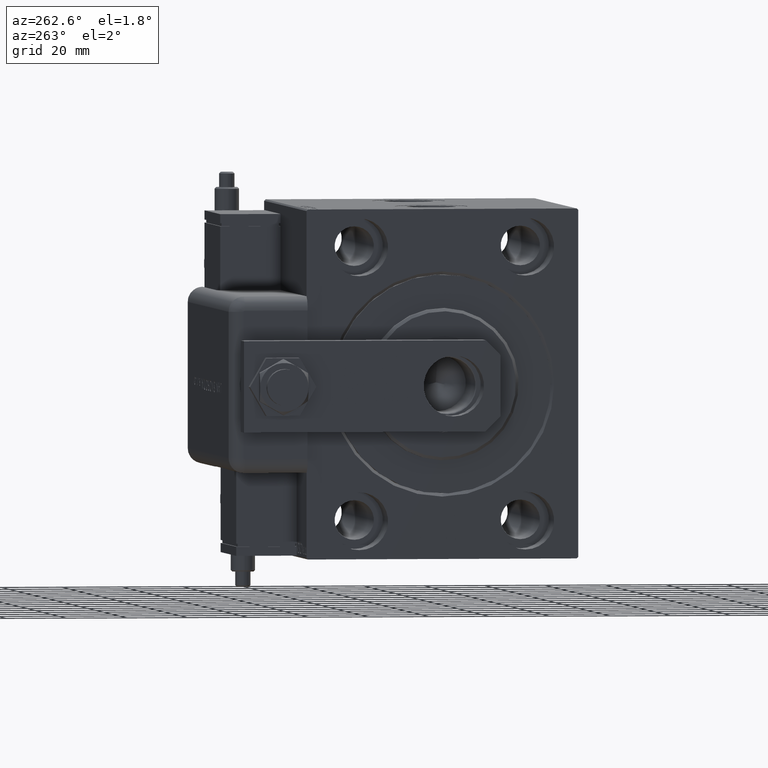
[diagram: clean part render]
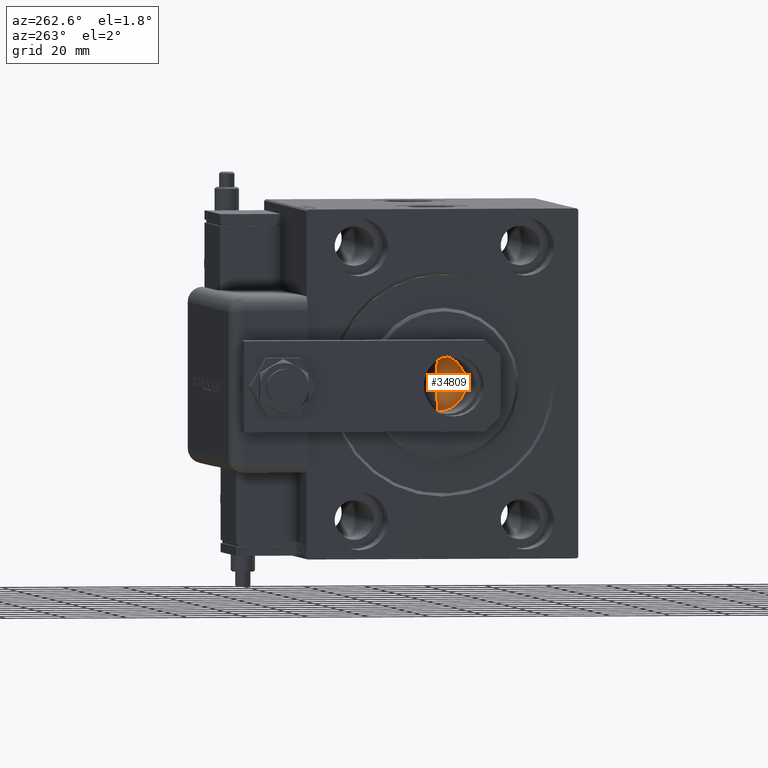
[diagram: same view with one face highlighted and labeled with its STEP entity id]
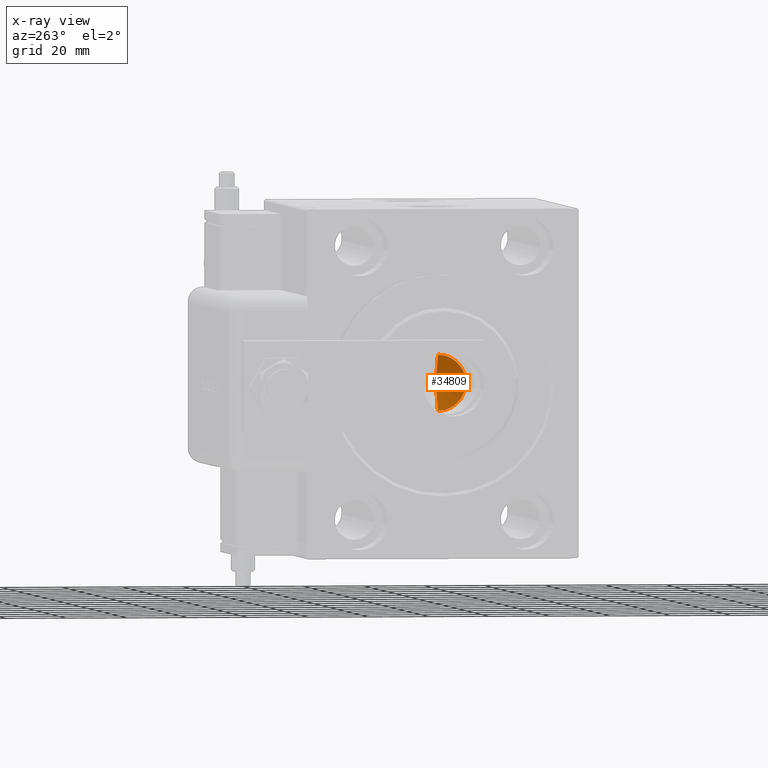
[diagram: x-ray of the same camera — body ghosted, the highlighted face saturated]
A machine part, auxiliary view. The second image highlights one B-rep face of the part: STEP entity #34809.
The next image is the same camera in x-ray: the body ghosted, the highlighted face saturated — about 2% of this face is hidden behind the body in this view.
In plain terms, the highlighted conical surface has half-angle 59 deg.
Its self-contained STEP definition (entity closure, byte-faithful):
#1920 = ORIENTED_EDGE ( 'NONE', *, *, #44801, .T. ) ;
#2652 = FACE_OUTER_BOUND ( 'NONE', #23823, .T. ) ;
#7269 = EDGE_CURVE ( 'NONE', #52440, #11649, #9645, .T. ) ;
#8392 = CARTESIAN_POINT ( 'NONE',  ( 0.000000000000000000, 0.000000000000000000, 79.00000000000001421 ) ) ;
#9645 = LINE ( 'NONE', #52471, #42241 ) ;
#10575 = DIRECTION ( 'NONE',  ( -0.8571673007021113344, 1.049727191138617463E-16, 0.5150380749100558209 ) ) ;
#11649 = VERTEX_POINT ( 'NONE', #46358 ) ;
#12534 = AXIS2_PLACEMENT_3D ( 'NONE', #40766, #60048, #50423 ) ;
#18310 = DIRECTION ( 'NONE',  ( -0.000000000000000000, -0.000000000000000000, 1.000000000000000000 ) ) ;
#23823 = EDGE_LOOP ( 'NONE', ( #32349, #50210, #1920 ) ) ;
#24028 = VECTOR ( 'NONE', #28440, 1000.000000000000000 ) ;
#26381 = CONICAL_SURFACE ( 'NONE', #12534, 9.249999999999994671, 1.029744258676652535 ) ;
#28440 = DIRECTION ( 'NONE',  ( 0.8571673007021113344, 0.000000000000000000, 0.5150380749100558209 ) ) ;
#32349 = ORIENTED_EDGE ( 'NONE', *, *, #46164, .F. ) ;
#34035 = AXIS2_PLACEMENT_3D ( 'NONE', #8392, #18310, #55874 ) ;
#34809 = ADVANCED_FACE ( 'NONE', ( #2652 ), #26381, .F. ) ;
#36318 = CARTESIAN_POINT ( 'NONE',  ( 9.249999999999994671, 0.000000000000000000, 79.00000000000001421 ) ) ;
#38994 = CIRCLE ( 'NONE', #34035, 9.249999999999994671 ) ;
#40766 = CARTESIAN_POINT ( 'NONE',  ( 0.000000000000000000, 0.000000000000000000, 79.00000000000001421 ) ) ;
#42241 = VECTOR ( 'NONE', #10575, 1000.000000000000000 ) ;
#42356 = CARTESIAN_POINT ( 'NONE',  ( -6.793016015247754405E-15, 0.000000000000000000, 73.44203927399506426 ) ) ;
#43739 = CARTESIAN_POINT ( 'NONE',  ( 9.249999999999994671, 0.000000000000000000, 79.00000000000001421 ) ) ;
#44801 = EDGE_CURVE ( 'NONE', #11649, #52995, #38994, .T. ) ;
#46164 = EDGE_CURVE ( 'NONE', #52440, #52995, #54667, .T. ) ;
#46358 = CARTESIAN_POINT ( 'NONE',  ( -9.249999999999994671, 1.132798289211300909E-15, 79.00000000000001421 ) ) ;
#50210 = ORIENTED_EDGE ( 'NONE', *, *, #7269, .T. ) ;
#50423 = DIRECTION ( 'NONE',  ( 1.000000000000000000, 0.000000000000000000, 0.000000000000000000 ) ) ;
#52440 = VERTEX_POINT ( 'NONE', #42356 ) ;
#52471 = CARTESIAN_POINT ( 'NONE',  ( -9.249999999999994671, 1.132798289211300909E-15, 79.00000000000001421 ) ) ;
#52995 = VERTEX_POINT ( 'NONE', #43739 ) ;
#54667 = LINE ( 'NONE', #36318, #24028 ) ;
#55874 = DIRECTION ( 'NONE',  ( 1.000000000000000000, 0.000000000000000000, 0.000000000000000000 ) ) ;
#60048 = DIRECTION ( 'NONE',  ( -0.000000000000000000, -0.000000000000000000, 1.000000000000000000 ) ) ;